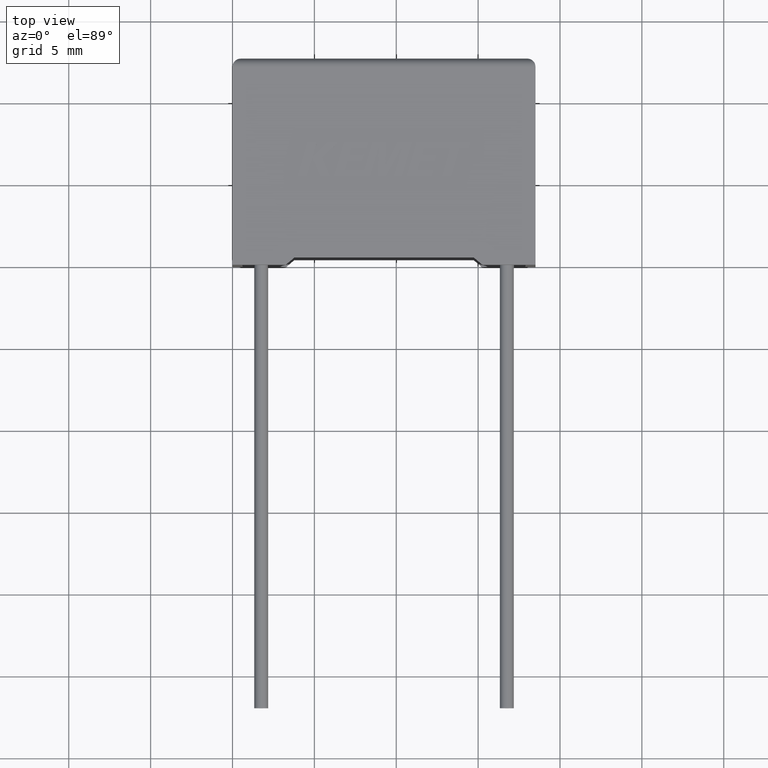
[diagram: clean part render]
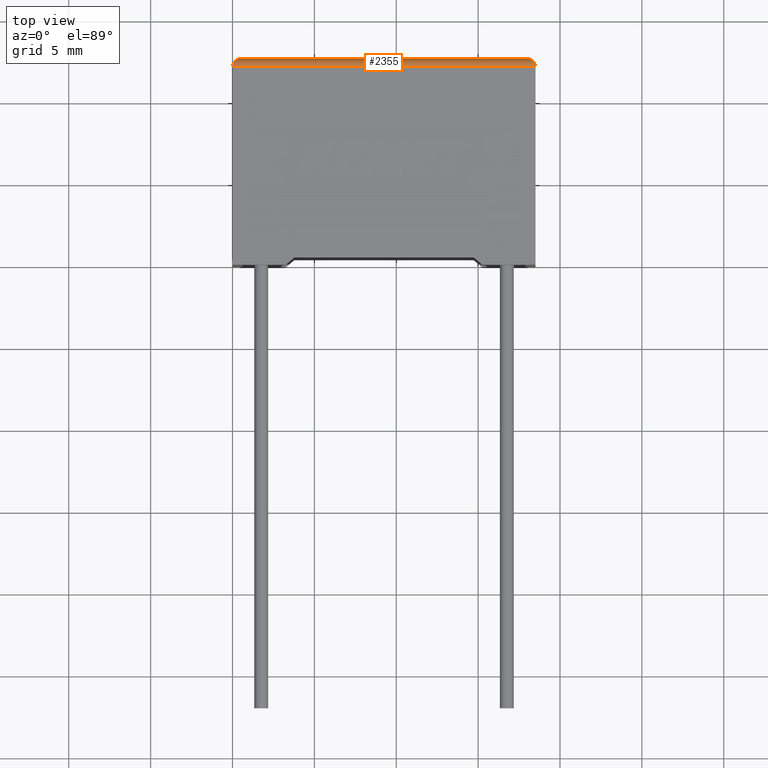
[diagram: same view with one face highlighted and labeled with its STEP entity id]
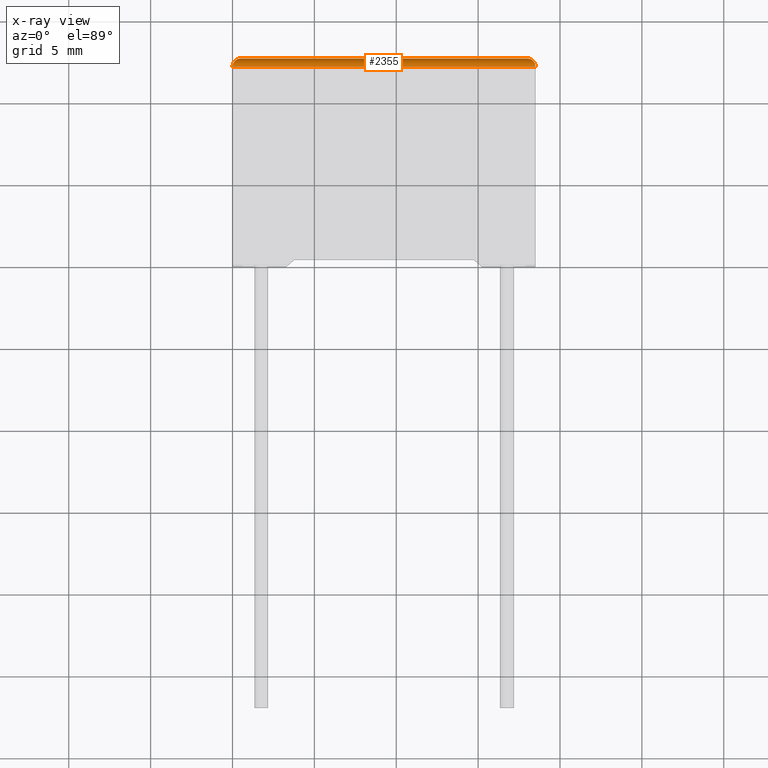
[diagram: x-ray of the same camera — body ghosted, the highlighted face saturated]
A machine part, top view. The second image highlights one B-rep face of the part: STEP entity #2355.
The next image is the same camera in x-ray: the body ghosted, the highlighted face saturated — about 0% of this face is hidden behind the body in this view.
In plain terms, the highlighted cylindrical surface (edge-blend (fillet) strip) has radius 0.5 mm, axis along (-1, 0, 0).
Its self-contained STEP definition (entity closure, byte-faithful):
#33 = CARTESIAN_POINT ( 'NONE',  ( 18.50000000000000000, 12.10000000000000000, 9.199999999999999300 ) ) ;
#178 = CARTESIAN_POINT ( 'NONE',  ( 0.5000000000000000000, 12.60000000000000000, 8.699999999999999300 ) ) ;
#219 = ORIENTED_EDGE ( 'NONE', *, *, #2429, .T. ) ;
#246 = VERTEX_POINT ( 'NONE', #1642 ) ;
#308 = VERTEX_POINT ( 'NONE', #1473 ) ;
#586 = VERTEX_POINT ( 'NONE', #2065 ) ;
#599 = CARTESIAN_POINT ( 'NONE',  ( 0.5000000000000000000, 12.60000000000000000, 8.699999999999999300 ) ) ;
#631 = DIRECTION ( 'NONE',  ( -1.000000000000000000, 0.0000000000000000000, 0.0000000000000000000 ) ) ;
#803 = CARTESIAN_POINT ( 'NONE',  ( 18.00000000000000000, 12.60000000000000000, 8.699999999999999300 ) ) ;
#986 = CARTESIAN_POINT ( 'NONE',  ( 18.50000000000000000, 12.39289321881345200, 9.199999999999999300 ) ) ;
#1003 = DIRECTION ( 'NONE',  ( 0.0000000000000000000, 0.0000000000000000000, 1.000000000000000000 ) ) ;
#1052 = FACE_OUTER_BOUND ( 'NONE', #2879, .T. ) ;
#1066 = AXIS2_PLACEMENT_3D ( 'NONE', #2921, #1575, #1003 ) ;
#1350 = CARTESIAN_POINT ( 'NONE',  ( 1.084202172485504400E-016, 12.39289321881345200, 9.199999999999999300 ) ) ;
#1415 = CARTESIAN_POINT ( 'NONE',  ( 0.0000000000000000000, 12.10000000000000000, 9.199999999999999300 ) ) ;
#1442 = LINE ( 'NONE', #1415, #1813 ) ;
#1473 = CARTESIAN_POINT ( 'NONE',  ( 0.0000000000000000000, 12.10000000000000000, 9.199999999999999300 ) ) ;
#1575 = DIRECTION ( 'NONE',  ( -1.000000000000000000, 0.0000000000000000000, 0.0000000000000000000 ) ) ;
#1619 = CARTESIAN_POINT ( 'NONE',  ( 0.2071067811865475700, 12.59999999999999600, 8.992893218813451400 ) ) ;
#1642 = CARTESIAN_POINT ( 'NONE',  ( 18.50000000000000000, 12.10000000000000000, 9.199999999999999300 ) ) ;
#1813 = VECTOR ( 'NONE', #631, 1000.000000000000000 ) ;
#1858 = CARTESIAN_POINT ( 'NONE',  ( 0.0000000000000000000, 12.60000000000000000, 8.699999999999999300 ) ) ;
#1905 = ORIENTED_EDGE ( 'NONE', *, *, #2819, .F. ) ;
#1971 = ORIENTED_EDGE ( 'NONE', *, *, #2775, .F. ) ;
#2065 = CARTESIAN_POINT ( 'NONE',  ( 18.00000000000000000, 12.60000000000000000, 8.699999999999999300 ) ) ;
#2239 = CARTESIAN_POINT ( 'NONE',  ( 18.29289321881345000, 12.59999999999999600, 8.992893218813451400 ) ) ;
#2355 = ADVANCED_FACE ( 'NONE', ( #1052 ), #2957, .T. ) ;
#2429 = EDGE_CURVE ( 'NONE', #246, #586, #2680, .T. ) ;
#2435 = EDGE_CURVE ( 'NONE', #308, #2595, #2626, .T. ) ;
#2462 = DIRECTION ( 'NONE',  ( 1.000000000000000000, -0.0000000000000000000, -0.0000000000000000000 ) ) ;
#2467 = ORIENTED_EDGE ( 'NONE', *, *, #2435, .F. ) ;
#2595 = VERTEX_POINT ( 'NONE', #599 ) ;
#2616 = LINE ( 'NONE', #1858, #2692 ) ;
#2626 =( BOUNDED_CURVE ( )  B_SPLINE_CURVE ( 3, ( #2765, #1350, #1619, #178 ),
 .UNSPECIFIED., .F., .T. ) 
 B_SPLINE_CURVE_WITH_KNOTS ( ( 4, 4 ),
 ( 0.0000000000000000000, 1.570796326794896600 ),
 .UNSPECIFIED. ) 
 CURVE ( )  GEOMETRIC_REPRESENTATION_ITEM ( )  RATIONAL_B_SPLINE_CURVE ( ( 1.000000000000000000, 0.8047378541243649400, 0.8047378541243649400, 1.000000000000000000 ) ) 
 REPRESENTATION_ITEM ( '' )  );
#2680 =( BOUNDED_CURVE ( )  B_SPLINE_CURVE ( 3, ( #33, #986, #2239, #803 ),
 .UNSPECIFIED., .F., .T. ) 
 B_SPLINE_CURVE_WITH_KNOTS ( ( 4, 4 ),
 ( 3.141592653589793100, 4.712388980384689700 ),
 .UNSPECIFIED. ) 
 CURVE ( )  GEOMETRIC_REPRESENTATION_ITEM ( )  RATIONAL_B_SPLINE_CURVE ( ( 1.000000000000000000, 0.8047378541243649400, 0.8047378541243649400, 1.000000000000000000 ) ) 
 REPRESENTATION_ITEM ( '' )  );
#2692 = VECTOR ( 'NONE', #2462, 1000.000000000000000 ) ;
#2765 = CARTESIAN_POINT ( 'NONE',  ( 0.0000000000000000000, 12.10000000000000000, 9.199999999999999300 ) ) ;
#2775 = EDGE_CURVE ( 'NONE', #2595, #586, #2616, .T. ) ;
#2819 = EDGE_CURVE ( 'NONE', #246, #308, #1442, .T. ) ;
#2879 = EDGE_LOOP ( 'NONE', ( #219, #1971, #2467, #1905 ) ) ;
#2921 = CARTESIAN_POINT ( 'NONE',  ( 0.0000000000000000000, 12.10000000000000000, 8.699999999999999300 ) ) ;
#2957 = CYLINDRICAL_SURFACE ( 'NONE', #1066, 0.5000000000000004400 ) ;